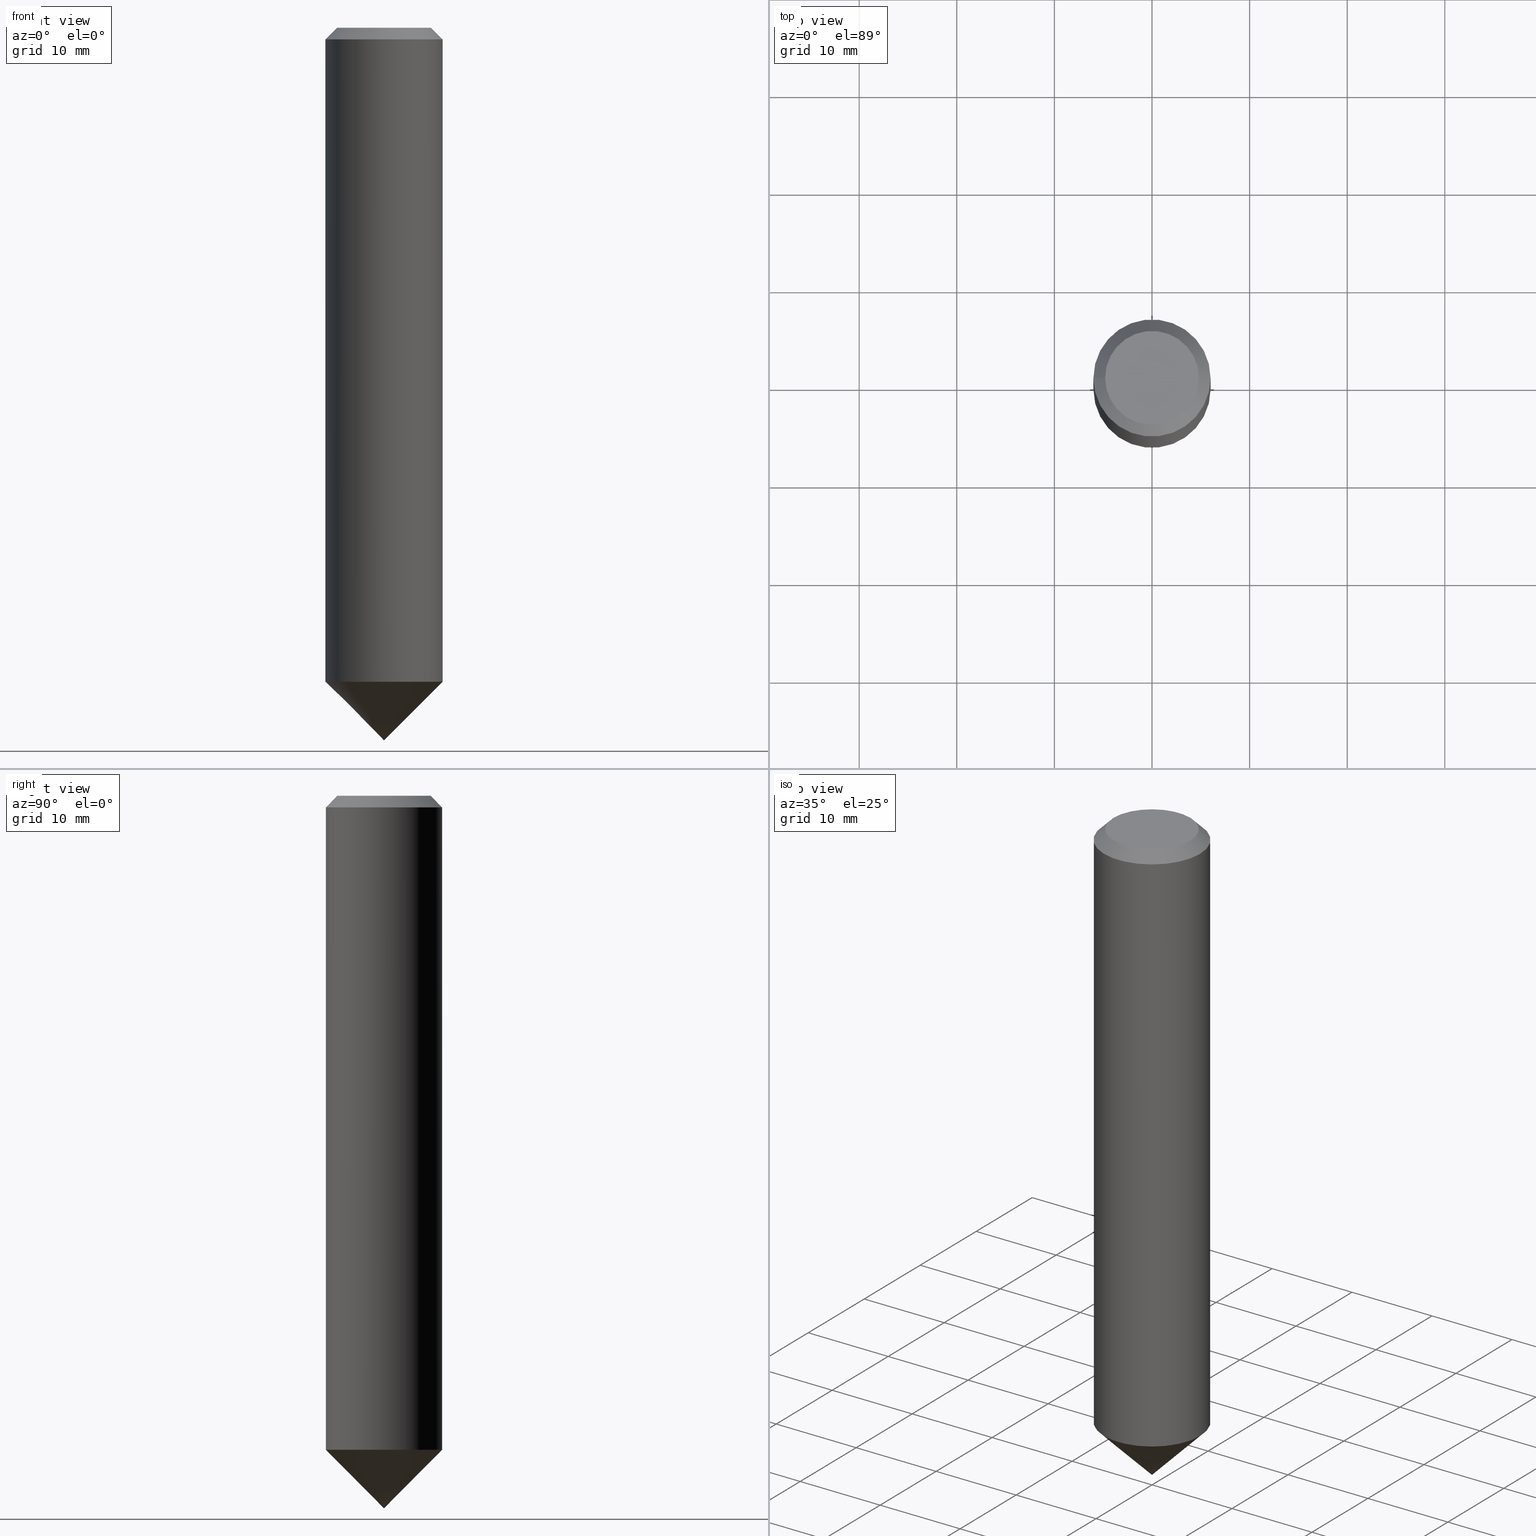
[diagram: canonical four-view strip — front | top / right | iso, engineering-drawing reading convention]
A machine part, canonical four-view strip (front | top / right | iso — engineering-drawing reading convention). The complete STEP part file that produces these views, byte-faithful:
ISO-10303-21;
HEADER;
FILE_DESCRIPTION (( 'STEP AP203' ),
    '1' );
FILE_NAME ('890.120.00.STEP',
    '2019-01-08T22:15:58',
    ( '' ),
    ( '' ),
    'SwSTEP 2.0',
    'SolidWorks 2019',
    '' );
FILE_SCHEMA (( 'CONFIG_CONTROL_DESIGN' ));
ENDSEC;

DATA;
#1 = CONICAL_SURFACE ( 'NONE', #84, 1000.000000000004206, 0.7853981633974503884 ) ;
#2 = DIRECTION ( 'NONE',  ( -1.000000000000000000, 0.0000000000000000000, 6.982962677686266711E-15 ) ) ;
#3 = CC_DESIGN_PERSON_AND_ORGANIZATION_ASSIGNMENT ( #46, #48, ( #50 ) ) ;
#4 = DIRECTION ( 'NONE',  ( 0.0000000000000000000, 0.0000000000000000000, 1.000000000000000000 ) ) ;
#5 = ORIENTED_EDGE ( 'NONE', *, *, #88, .T. ) ;
#6 = EDGE_CURVE ( 'NONE', #106, #106, #51, .T. ) ;
#7 = DIRECTION ( 'NONE',  ( -1.000000000000000000, 0.0000000000000000000, 6.982962677686266711E-15 ) ) ;
#8 = APPROVAL_PERSON_ORGANIZATION ( #52, #176, #151 ) ;
#9 = PERSON_AND_ORGANIZATION_ROLE ( 'design_supplier' ) ;
#10 = SECURITY_CLASSIFICATION_LEVEL ( 'unclassified' ) ;
#11 = CARTESIAN_POINT ( 'NONE',  ( -8.379555213223567384E-15, 0.0000000000000000000, -1.200000000000006617 ) ) ;
#12 = DATE_AND_TIME ( #103, #75 ) ;
#13 = AXIS2_PLACEMENT_3D ( 'NONE', #120, #4, #111 ) ;
#14 = EDGE_LOOP ( 'NONE', ( #77 ) ) ;
#15 = FACE_OUTER_BOUND ( 'NONE', #14, .T. ) ;
#16 = PRODUCT ( '890.120.00', '890.120.00', '', ( #142 ) ) ;
#17 = ORIENTED_EDGE ( 'NONE', *, *, #115, .T. ) ;
#18 = CARTESIAN_POINT ( 'NONE',  ( -4.678584994049796929E-13, 0.0000000000000000000, -66.99999999999997158 ) ) ;
#19 = APPLICATION_PROTOCOL_DEFINITION ( 'international standard', 'config_control_design', 1994, #57 ) ;
#20 = CYLINDRICAL_SURFACE ( 'NONE', #102, 5.999999999999998224 ) ;
#21 = CC_DESIGN_PERSON_AND_ORGANIZATION_ASSIGNMENT ( #34, #183, ( #160 ) ) ;
#22 = COORDINATED_UNIVERSAL_TIME_OFFSET ( 1, 0, .AHEAD. ) ;
#23 = UNCERTAINTY_MEASURE_WITH_UNIT (LENGTH_MEASURE( 1.000000000000000082E-05 ), #58, 'distance_accuracy_value', 'NONE');
#24 = APPROVAL_PERSON_ORGANIZATION ( #152, #178, #45 ) ;
#25 = PERSON_AND_ORGANIZATION_ROLE ( 'classification_officer' ) ;
#26 = APPROVAL_DATE_TIME ( #136, #176 ) ;
#27 = ADVANCED_FACE ( 'NONE', ( #47 ), #129, .T. ) ;
#28 =( NAMED_UNIT ( * ) SI_UNIT ( $, .STERADIAN. ) SOLID_ANGLE_UNIT ( ) );
#29 = ORIENTED_EDGE ( 'NONE', *, *, #122, .T. ) ;
#30 = COORDINATED_UNIVERSAL_TIME_OFFSET ( 1, 0, .AHEAD. ) ;
#31 = LOCAL_TIME ( 23, 15, 58.00000000000000000, #30 ) ;
#32 = CARTESIAN_POINT ( 'NONE',  ( -6.000000000000008882, 0.0000000000000000000, -1.199999999999964873 ) ) ;
#33 = CARTESIAN_POINT ( 'NONE',  ( -5.097562754710974446E-13, 0.0000000000000000000, -73.00000000000000000 ) ) ;
#34 = PERSON_AND_ORGANIZATION ( #39, #114 ) ;
#35 = ORIENTED_EDGE ( 'NONE', *, *, #6, .F. ) ;
#36 = CIRCLE ( 'NONE', #131, 6.000000000000000000 ) ;
#37 = APPLICATION_CONTEXT ( 'configuration controlled 3d designs of mechanical parts and assemblies' ) ;
#38 = ADVANCED_FACE ( 'NONE', ( #157, #147 ), #20, .T. ) ;
#39 = PERSON ( 'UNSPECIFIED', 'UNSPECIFIED', 'UNSPECIFIED', ('UNSPECIFIED'), ('UNSPECIFIED'), ('UNSPECIFIED') ) ;
#40 = COORDINATED_UNIVERSAL_TIME_OFFSET ( 1, 0, .AHEAD. ) ;
#41 = CARTESIAN_POINT ( 'NONE',  ( 5.999999999999531042, 0.0000000000000000000, -67.00000000000005684 ) ) ;
#42 = EDGE_LOOP ( 'NONE', ( #5 ) ) ;
#43 = DIRECTION ( 'NONE',  ( -6.982962677686266711E-15, -0.0000000000000000000, -1.000000000000000000 ) ) ;
#44 = LOCAL_TIME ( 23, 15, 58.00000000000000000, #22 ) ;
#45 = APPROVAL_ROLE ( '' ) ;
#46 = PERSON_AND_ORGANIZATION ( #39, #114 ) ;
#47 = FACE_OUTER_BOUND ( 'NONE', #42, .T. ) ;
#48 = PERSON_AND_ORGANIZATION_ROLE ( 'creator' ) ;
#49 = MANIFOLD_SOLID_BREP ( 'TYp 17 drehen[1]', #137 ) ;
#50 = PRODUCT_DEFINITION ( 'UNKNOWN', '', #160, #173 ) ;
#51 = CIRCLE ( 'NONE', #60, 5.999999999999998224 ) ;
#52 = PERSON_AND_ORGANIZATION ( #39, #114 ) ;
#53 = DIRECTION ( 'NONE',  ( 1.000000000000000000, 0.0000000000000000000, -6.994405055138457017E-15 ) ) ;
#54 = CC_DESIGN_DATE_AND_TIME_ASSIGNMENT ( #12, #119, ( #63 ) ) ;
#55 = CIRCLE ( 'NONE', #175, 4.799999999999996270 ) ;
#56 = CARTESIAN_POINT ( 'NONE',  ( -4.678584994049799958E-13, 0.0000000000000000000, -67.00000000000001421 ) ) ;
#57 = APPLICATION_CONTEXT ( 'configuration controlled 3d designs of mechanical parts and assemblies' ) ;
#58 =( LENGTH_UNIT ( ) NAMED_UNIT ( * ) SI_UNIT ( .MILLI., .METRE. ) );
#59 = CARTESIAN_POINT ( 'NONE',  ( 0.0000000000000000000, 0.0000000000000000000, 0.0000000000000000000 ) ) ;
#60 = AXIS2_PLACEMENT_3D ( 'NONE', #94, #81, #71 ) ;
#61 = PLANE ( 'NONE',  #101 ) ;
#62 = CC_DESIGN_PERSON_AND_ORGANIZATION_ASSIGNMENT ( #180, #25, ( #63 ) ) ;
#63 = SECURITY_CLASSIFICATION ( '', '', #10 ) ;
#64 = ADVANCED_FACE ( 'NONE', ( #125, #182 ), #144, .T. ) ;
#65 = APPROVAL_DATE_TIME ( #163, #165 ) ;
#66 = ADVANCED_FACE ( 'NONE', ( #177 ), #1, .T. ) ;
#67 = CALENDAR_DATE ( 2019, 8, 1 ) ;
#68 = CARTESIAN_POINT ( 'NONE',  ( 5.999999999999531042, 0.0000000000000000000, -67.00000000000005684 ) ) ;
#69 = DIRECTION ( 'NONE',  ( -1.000000000000000000, 0.0000000000000000000, 6.938893903907230744E-15 ) ) ;
#70 = VERTEX_POINT ( 'NONE', #135 ) ;
#71 = DIRECTION ( 'NONE',  ( 1.000000000000000000, 0.0000000000000000000, -6.938893903907230744E-15 ) ) ;
#72 = CC_DESIGN_APPROVAL ( #176, ( #160 ) ) ;
#73 = DIRECTION ( 'NONE',  ( -1.000000000000000000, 0.0000000000000000000, 6.982962677686266711E-15 ) ) ;
#74 = EDGE_LOOP ( 'NONE', ( #29 ) ) ;
#75 = LOCAL_TIME ( 23, 15, 58.00000000000000000, #40 ) ;
#76 = APPROVAL_STATUS ( 'not_yet_approved' ) ;
#77 = ORIENTED_EDGE ( 'NONE', *, *, #122, .F. ) ;
#78 = APPROVAL_STATUS ( 'not_yet_approved' ) ;
#79 = DIRECTION ( 'NONE',  ( -6.982962677686266711E-15, 0.0000000000000000000, -1.000000000000000000 ) ) ;
#80 = PLANE ( 'NONE',  #156 ) ;
#81 = DIRECTION ( 'NONE',  ( -6.982962677686266711E-15, -0.0000000000000000000, -1.000000000000000000 ) ) ;
#82 = DIRECTION ( 'NONE',  ( -6.982962677686266711E-15, 0.0000000000000000000, -1.000000000000000000 ) ) ;
#83 = ORIENTED_EDGE ( 'NONE', *, *, #6, .T. ) ;
#84 = AXIS2_PLACEMENT_3D ( 'NONE', #133, #118, #53 ) ;
#85 = CC_DESIGN_DATE_AND_TIME_ASSIGNMENT ( #97, #140, ( #50 ) ) ;
#86 = ADVANCED_FACE ( 'NONE', ( #104 ), #61, .F. ) ;
#87 = LOCAL_TIME ( 23, 15, 58.00000000000000000, #95 ) ;
#88 = EDGE_CURVE ( 'NONE', #166, #166, #161, .T. ) ;
#89 =( GEOMETRIC_REPRESENTATION_CONTEXT ( 3 ) GLOBAL_UNCERTAINTY_ASSIGNED_CONTEXT ( ( #23 ) ) GLOBAL_UNIT_ASSIGNED_CONTEXT ( ( #58, #168, #28 ) ) REPRESENTATION_CONTEXT ( 'NONE', 'WORKASPACE' ) );
#90 = AXIS2_PLACEMENT_3D ( 'NONE', #153, #100, #2 ) ;
#91 = DIRECTION ( 'NONE',  ( -6.982962677686266711E-15, 0.0000000000000000000, -1.000000000000000000 ) ) ;
#92 = EDGE_LOOP ( 'NONE', ( #83 ) ) ;
#93 = APPLICATION_PROTOCOL_DEFINITION ( 'international standard', 'config_control_design', 1994, #37 ) ;
#94 = CARTESIAN_POINT ( 'NONE',  ( -4.678584994049799958E-13, 0.0000000000000000000, -67.00000000000001421 ) ) ;
#95 = COORDINATED_UNIVERSAL_TIME_OFFSET ( 1, 0, .AHEAD. ) ;
#96 = EDGE_LOOP ( 'NONE', ( #17 ) ) ;
#97 = DATE_AND_TIME ( #158, #44 ) ;
#98 = DIRECTION ( 'NONE',  ( -1.000000000000000000, 0.0000000000000000000, 6.982962677686266711E-15 ) ) ;
#99 = DIRECTION ( 'NONE',  ( -6.982962677686266711E-15, 0.0000000000000000000, -1.000000000000000000 ) ) ;
#100 = DIRECTION ( 'NONE',  ( -6.982962677686266711E-15, 0.0000000000000000000, -1.000000000000000000 ) ) ;
#101 = AXIS2_PLACEMENT_3D ( 'NONE', #18, #82, #169 ) ;
#102 = AXIS2_PLACEMENT_3D ( 'NONE', #33, #130, #69 ) ;
#103 = CALENDAR_DATE ( 2019, 8, 1 ) ;
#104 = FACE_OUTER_BOUND ( 'NONE', #109, .T. ) ;
#105 = PERSON_AND_ORGANIZATION ( #39, #114 ) ;
#106 = VERTEX_POINT ( 'NONE', #41 ) ;
#107 = CALENDAR_DATE ( 2019, 8, 1 ) ;
#108 = PERSON_AND_ORGANIZATION_ROLE ( 'design_owner' ) ;
#109 = EDGE_LOOP ( 'NONE', ( #35 ) ) ;
#110 = DIRECTION ( 'NONE',  ( -6.982962677686266711E-15, 0.0000000000000000000, -1.000000000000000000 ) ) ;
#111 = DIRECTION ( 'NONE',  ( 1.000000000000000000, 0.0000000000000000000, 0.0000000000000000000 ) ) ;
#112 = DATE_AND_TIME ( #155, #87 ) ;
#113 = AXIS2_PLACEMENT_3D ( 'NONE', #56, #43, #124 ) ;
#114 = ORGANIZATION ( 'UNSPECIFIED', 'UNSPECIFIED', '' ) ;
#115 = EDGE_CURVE ( 'NONE', #127, #127, #36, .T. ) ;
#116 = APPROVAL_PERSON_ORGANIZATION ( #105, #165, #167 ) ;
#117 = PRODUCT_DEFINITION_SHAPE ( 'NONE', 'NONE',  #50 ) ;
#118 = DIRECTION ( 'NONE',  ( 6.982962677686266711E-15, 0.0000000000000000000, 1.000000000000000000 ) ) ;
#119 = DATE_TIME_ROLE ( 'classification_date' ) ;
#120 = CARTESIAN_POINT ( 'NONE',  ( 0.0000000000000000000, 0.0000000000000000000, 0.0000000000000000000 ) ) ;
#121 = CC_DESIGN_APPROVAL ( #165, ( #63 ) ) ;
#122 = EDGE_CURVE ( 'NONE', #70, #70, #55, .T. ) ;
#123 = ADVANCED_BREP_SHAPE_REPRESENTATION ( '890.120.00', ( #49, #170, #13 ), #89 ) ;
#124 = DIRECTION ( 'NONE',  ( 1.000000000000000000, 0.0000000000000000000, -6.938893903907230744E-15 ) ) ;
#125 = FACE_OUTER_BOUND ( 'NONE', #150, .T. ) ;
#126 = SHAPE_DEFINITION_REPRESENTATION ( #117, #123 ) ;
#127 = VERTEX_POINT ( 'NONE', #32 ) ;
#128 = CC_DESIGN_PERSON_AND_ORGANIZATION_ASSIGNMENT ( #143, #108, ( #16 ) ) ;
#129 = PLANE ( 'NONE',  #90 ) ;
#130 = DIRECTION ( 'NONE',  ( -6.982962677686266711E-15, 0.0000000000000000000, -1.000000000000000000 ) ) ;
#131 = AXIS2_PLACEMENT_3D ( 'NONE', #11, #91, #138 ) ;
#132 = CC_DESIGN_APPROVAL ( #178, ( #50 ) ) ;
#133 = CARTESIAN_POINT ( 'NONE',  ( 6.473206402215169468E-12, 0.0000000000000000000, 927.0000000000000000 ) ) ;
#134 = COORDINATED_UNIVERSAL_TIME_OFFSET ( 1, 0, .AHEAD. ) ;
#135 = CARTESIAN_POINT ( 'NONE',  ( -4.799999999999996270, 0.0000000000000000000, 3.351822085289405497E-14 ) ) ;
#136 = DATE_AND_TIME ( #107, #146 ) ;
#137 = CLOSED_SHELL ( 'NONE', ( #38, #174, #64, #27 ) ) ;
#138 = DIRECTION ( 'NONE',  ( -1.000000000000000000, 0.0000000000000000000, 6.975033976323412122E-15 ) ) ;
#139 = ORIENTED_EDGE ( 'NONE', *, *, #88, .F. ) ;
#140 = DATE_TIME_ROLE ( 'creation_date' ) ;
#141 = CARTESIAN_POINT ( 'NONE',  ( 0.0000000000000000000, 0.0000000000000000000, 0.0000000000000000000 ) ) ;
#142 = MECHANICAL_CONTEXT ( 'NONE', #57, 'mechanical' ) ;
#143 = PERSON_AND_ORGANIZATION ( #39, #114 ) ;
#144 = CONICAL_SURFACE ( 'NONE', #159, 4.799999999999996270, 0.7853981633974472798 ) ;
#145 = EDGE_LOOP ( 'NONE', ( #139 ) ) ;
#146 = LOCAL_TIME ( 23, 15, 58.00000000000000000, #134 ) ;
#147 = FACE_OUTER_BOUND ( 'NONE', #145, .T. ) ;
#148 = PRODUCT_RELATED_PRODUCT_CATEGORY ( 'detail', '', ( #16 ) ) ;
#149 = CLOSED_SHELL ( 'NONE', ( #86, #66 ) ) ;
#150 = EDGE_LOOP ( 'NONE', ( #171 ) ) ;
#151 = APPROVAL_ROLE ( '' ) ;
#152 = PERSON_AND_ORGANIZATION ( #39, #114 ) ;
#153 = CARTESIAN_POINT ( 'NONE',  ( -4.678584994049796929E-13, 0.0000000000000000000, -66.99999999999997158 ) ) ;
#154 = APPROVAL_STATUS ( 'not_yet_approved' ) ;
#155 = CALENDAR_DATE ( 2019, 8, 1 ) ;
#156 = AXIS2_PLACEMENT_3D ( 'NONE', #164, #110, #73 ) ;
#157 = FACE_OUTER_BOUND ( 'NONE', #96, .T. ) ;
#158 = CALENDAR_DATE ( 2019, 8, 1 ) ;
#159 = AXIS2_PLACEMENT_3D ( 'NONE', #59, #79, #7 ) ;
#160 = PRODUCT_DEFINITION_FORMATION_WITH_SPECIFIED_SOURCE ( 'ANY', '', #16, .NOT_KNOWN. ) ;
#161 = CIRCLE ( 'NONE', #113, 5.999999999999998224 ) ;
#162 = CC_DESIGN_SECURITY_CLASSIFICATION ( #63, ( #160 ) ) ;
#163 = DATE_AND_TIME ( #67, #31 ) ;
#164 = CARTESIAN_POINT ( 'NONE',  ( -1.597216999339167176E-30, 0.0000000000000000000, -2.287305650999682681E-16 ) ) ;
#165 = APPROVAL ( #76, 'UNSPECIFIED' ) ;
#166 = VERTEX_POINT ( 'NONE', #68 ) ;
#167 = APPROVAL_ROLE ( '' ) ;
#168 =( NAMED_UNIT ( * ) PLANE_ANGLE_UNIT ( ) SI_UNIT ( $, .RADIAN. ) );
#169 = DIRECTION ( 'NONE',  ( -1.000000000000000000, 0.0000000000000000000, 6.982962677686266711E-15 ) ) ;
#170 = MANIFOLD_SOLID_BREP ( 'TYp 17 drehen[2]', #149 ) ;
#171 = ORIENTED_EDGE ( 'NONE', *, *, #115, .F. ) ;
#172 = APPROVAL_DATE_TIME ( #112, #178 ) ;
#173 = DESIGN_CONTEXT ( 'detailed design', #37, 'design' ) ;
#174 = ADVANCED_FACE ( 'NONE', ( #15 ), #80, .F. ) ;
#175 = AXIS2_PLACEMENT_3D ( 'NONE', #141, #99, #98 ) ;
#176 = APPROVAL ( #154, 'UNSPECIFIED' ) ;
#177 = FACE_OUTER_BOUND ( 'NONE', #92, .T. ) ;
#178 = APPROVAL ( #78, 'UNSPECIFIED' ) ;
#179 = CC_DESIGN_PERSON_AND_ORGANIZATION_ASSIGNMENT ( #181, #9, ( #160 ) ) ;
#180 = PERSON_AND_ORGANIZATION ( #39, #114 ) ;
#181 = PERSON_AND_ORGANIZATION ( #39, #114 ) ;
#182 = FACE_BOUND ( 'NONE', #74, .T. ) ;
#183 = PERSON_AND_ORGANIZATION_ROLE ( 'creator' ) ;
ENDSEC;
END-ISO-10303-21;
12547